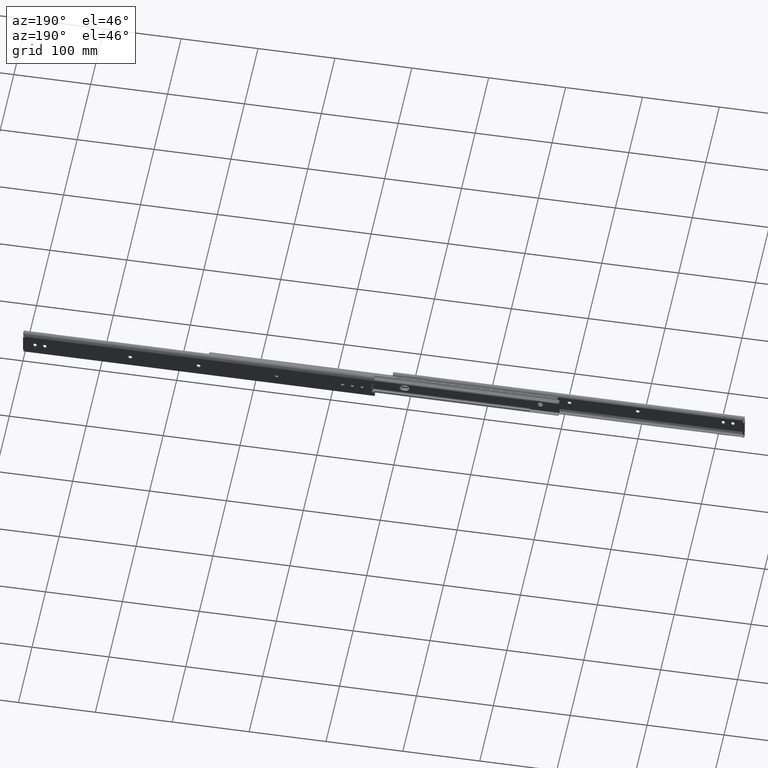
[diagram: clean part render]
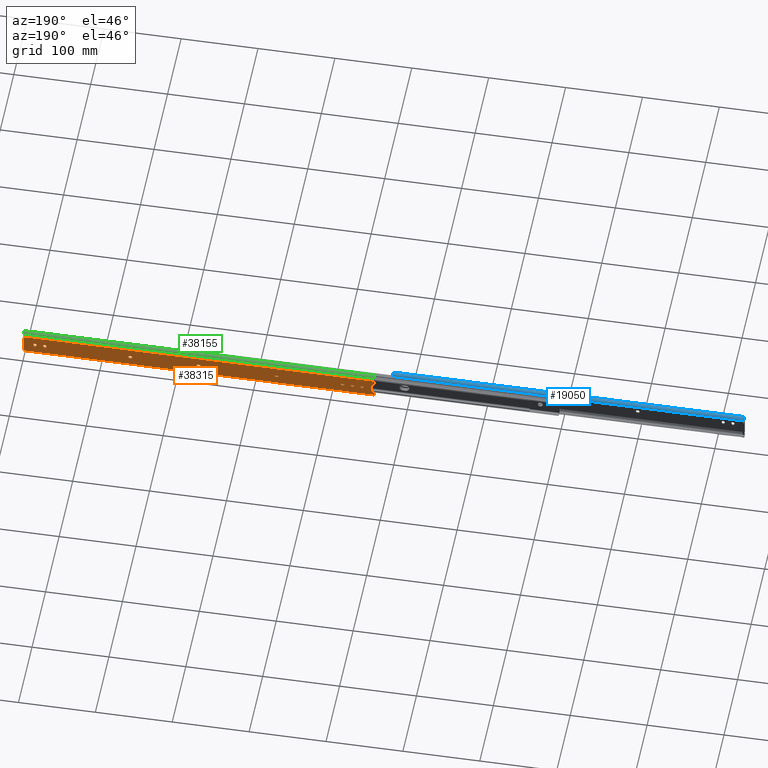
[diagram: same view with three faces highlighted in distinct colors, each labeled with its STEP entity id]
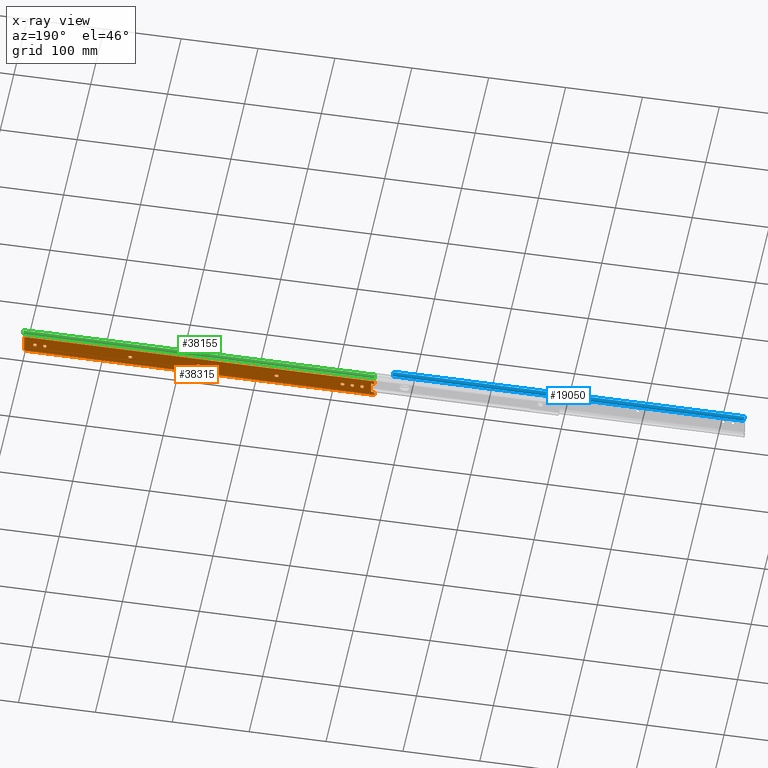
[diagram: x-ray of the same camera — body ghosted, the three highlighted faces saturated]
A machine part, auxiliary view with three faces highlighted in distinct colors.
The next image is the same camera in x-ray (body ghosted, the three faces saturated) — at least one of them is partly hidden behind the body in this view.
Their STEP definitions:

[orange] entity #38315 — the highlighted face is a freeform B-spline surface patch.
#34863=CARTESIAN_POINT('',(-443.350000000000020,0.0,0.400000000000006));
#34864=VERTEX_POINT('',#34863);
#34870=CARTESIAN_POINT('',(-438.850000000000020,0.0,0.400000000000006));
#34871=VERTEX_POINT('',#34870);
#34872=CARTESIAN_POINT('',(-438.850000000000020,0.0,0.400000000000006));
#34873=CARTESIAN_POINT('',(-438.850000000000080,0.0,2.650000000000006));
#34874=CARTESIAN_POINT('',(-441.100000000000020,0.0,2.650000000000005));
#34875=CARTESIAN_POINT('',(-443.349999999999970,0.0,2.650000000000006));
#34876=CARTESIAN_POINT('',(-443.350000000000020,0.0,0.400000000000006));
#34884=(BOUNDED_CURVE()B_SPLINE_CURVE(2,(#34872,#34873,#34874,#34875,#34876),.UNSPECIFIED.,.F.,.U.)B_SPLINE_CURVE_WITH_KNOTS((3,2,3),(0.0,0.500000000000000,1.0),.UNSPECIFIED.)CURVE()GEOMETRIC_REPRESENTATION_ITEM()RATIONAL_B_SPLINE_CURVE((1.0,0.707106781186547,1.0,0.707106781186547,1.0))REPRESENTATION_ITEM(''));
#34885=EDGE_CURVE('',#34871,#34864,#34884,.T.);
#34908=CARTESIAN_POINT('',(-438.850000000000020,0.0,-0.400000000000092));
#34909=VERTEX_POINT('',#34908);
#34910=CARTESIAN_POINT('',(-438.850000000000020,0.0,-0.400000000000092));
#34911=CARTESIAN_POINT('',(-438.850000000000020,0.0,0.400000000000006));
#34912=QUASI_UNIFORM_CURVE('',1,(#34910,#34911),.UNSPECIFIED.,.F.,.U.);
#34913=EDGE_CURVE('',#34909,#34871,#34912,.T.);
#34959=CARTESIAN_POINT('',(-443.350000000000020,0.0,-0.400000000000091));
#34960=VERTEX_POINT('',#34959);
#34961=CARTESIAN_POINT('',(-443.350000000000020,0.0,-0.400000000000091));
#34962=CARTESIAN_POINT('',(-443.349999999999970,0.0,-2.650000000000091));
#34963=CARTESIAN_POINT('',(-441.100000000000020,0.0,-2.650000000000091));
#34964=CARTESIAN_POINT('',(-438.850000000000080,0.0,-2.650000000000091));
#34965=CARTESIAN_POINT('',(-438.850000000000020,0.0,-0.400000000000091));
#34973=(BOUNDED_CURVE()B_SPLINE_CURVE(2,(#34961,#34962,#34963,#34964,#34965),.UNSPECIFIED.,.F.,.U.)B_SPLINE_CURVE_WITH_KNOTS((3,2,3),(0.0,0.500000000000000,1.0),.UNSPECIFIED.)CURVE()GEOMETRIC_REPRESENTATION_ITEM()RATIONAL_B_SPLINE_CURVE((1.0,0.707106781186547,1.0,0.707106781186547,1.0))REPRESENTATION_ITEM(''));
#34974=EDGE_CURVE('',#34960,#34909,#34973,.T.);
#34995=CARTESIAN_POINT('',(-443.350000000000020,0.0,0.400000000000006));
#34996=CARTESIAN_POINT('',(-443.350000000000020,0.0,-0.400000000000091));
#34997=QUASI_UNIFORM_CURVE('',1,(#34995,#34996),.UNSPECIFIED.,.F.,.U.);
#34998=EDGE_CURVE('',#34864,#34960,#34997,.T.);
#35018=CARTESIAN_POINT('',(-430.649999999999980,0.0,-0.400000000000092));
#35019=VERTEX_POINT('',#35018);
#35025=CARTESIAN_POINT('',(-430.649999999999980,0.0,0.400000000000006));
#35026=VERTEX_POINT('',#35025);
#35027=CARTESIAN_POINT('',(-430.649999999999980,0.0,-0.400000000000092));
#35028=CARTESIAN_POINT('',(-430.649999999999980,0.0,0.400000000000006));
#35029=QUASI_UNIFORM_CURVE('',1,(#35027,#35028),.UNSPECIFIED.,.F.,.U.);
#35030=EDGE_CURVE('',#35019,#35026,#35029,.T.);
#35076=CARTESIAN_POINT('',(-426.149999999999980,0.0,0.400000000000006));
#35077=VERTEX_POINT('',#35076);
#35078=CARTESIAN_POINT('',(-426.149999999999980,0.0,0.400000000000006));
#35079=CARTESIAN_POINT('',(-426.149999999999980,0.0,2.650000000000006));
#35080=CARTESIAN_POINT('',(-428.399999999999980,0.0,2.650000000000005));
#35081=CARTESIAN_POINT('',(-430.649999999999860,0.0,2.650000000000006));
#35082=CARTESIAN_POINT('',(-430.649999999999980,0.0,0.400000000000006));
#35090=(BOUNDED_CURVE()B_SPLINE_CURVE(2,(#35078,#35079,#35080,#35081,#35082),.UNSPECIFIED.,.F.,.U.)B_SPLINE_CURVE_WITH_KNOTS((3,2,3),(0.0,0.500000000000000,1.0),.UNSPECIFIED.)CURVE()GEOMETRIC_REPRESENTATION_ITEM()RATIONAL_B_SPLINE_CURVE((1.0,0.707106781186547,1.0,0.707106781186547,1.0))REPRESENTATION_ITEM(''));
#35091=EDGE_CURVE('',#35077,#35026,#35090,.T.);
#35114=CARTESIAN_POINT('',(-426.149999999999980,0.0,-0.400000000000091));
#35115=VERTEX_POINT('',#35114);
#35116=CARTESIAN_POINT('',(-426.149999999999980,0.0,0.400000000000006));
#35117=CARTESIAN_POINT('',(-426.149999999999980,0.0,-0.400000000000091));
#35118=QUASI_UNIFORM_CURVE('',1,(#35116,#35117),.UNSPECIFIED.,.F.,.U.);
#35119=EDGE_CURVE('',#35077,#35115,#35118,.T.);
#35163=CARTESIAN_POINT('',(-430.649999999999980,0.0,-0.400000000000091));
#35164=CARTESIAN_POINT('',(-430.649999999999860,0.0,-2.650000000000091));
#35165=CARTESIAN_POINT('',(-428.399999999999980,0.0,-2.650000000000091));
#35166=CARTESIAN_POINT('',(-426.149999999999980,0.0,-2.650000000000091));
#35167=CARTESIAN_POINT('',(-426.149999999999980,0.0,-0.400000000000091));
#35175=(BOUNDED_CURVE()B_SPLINE_CURVE(2,(#35163,#35164,#35165,#35166,#35167),.UNSPECIFIED.,.F.,.U.)B_SPLINE_CURVE_WITH_KNOTS((3,2,3),(0.0,0.500000000000000,1.0),.UNSPECIFIED.)CURVE()GEOMETRIC_REPRESENTATION_ITEM()RATIONAL_B_SPLINE_CURVE((1.0,0.707106781186547,1.0,0.707106781186547,1.0))REPRESENTATION_ITEM(''));
#35176=EDGE_CURVE('',#35019,#35115,#35175,.T.);
#35219=CARTESIAN_POINT('',(-415.300000000000010,0.0,2.250000000000000));
#35220=VERTEX_POINT('',#35219);
#35226=CARTESIAN_POINT('',(-415.300000000000010,0.0,-2.250000000000000));
#35227=VERTEX_POINT('',#35226);
#35228=CARTESIAN_POINT('',(-415.300000000000010,0.0,-2.250000000000000));
#35229=CARTESIAN_POINT('',(-413.050000000000070,0.0,-2.250000000000000));
#35230=CARTESIAN_POINT('',(-413.050000000000010,0.0,0.0));
#35231=CARTESIAN_POINT('',(-413.050000000000070,0.0,2.250000000000000));
#35232=CARTESIAN_POINT('',(-415.300000000000010,0.0,2.250000000000000));
#35240=(BOUNDED_CURVE()B_SPLINE_CURVE(2,(#35228,#35229,#35230,#35231,#35232),.UNSPECIFIED.,.F.,.U.)B_SPLINE_CURVE_WITH_KNOTS((3,2,3),(0.0,0.500000000000000,1.0),.UNSPECIFIED.)CURVE()GEOMETRIC_REPRESENTATION_ITEM()RATIONAL_B_SPLINE_CURVE((1.0,0.707106781186547,1.0,0.707106781186547,1.0))REPRESENTATION_ITEM(''));
#35241=EDGE_CURVE('',#35227,#35220,#35240,.T.);
#35263=CARTESIAN_POINT('',(-416.100000000000020,0.0,2.250000000000000));
#35264=VERTEX_POINT('',#35263);
#35270=CARTESIAN_POINT('',(-416.100000000000020,0.0,2.250000000000000));
#35271=CARTESIAN_POINT('',(-415.300000000000010,0.0,2.250000000000000));
#35272=QUASI_UNIFORM_CURVE('',1,(#35270,#35271),.UNSPECIFIED.,.F.,.U.);
#35273=EDGE_CURVE('',#35264,#35220,#35272,.T.);
#35314=CARTESIAN_POINT('',(-416.100000000000020,0.0,-2.250000000000000));
#35315=VERTEX_POINT('',#35314);
#35321=CARTESIAN_POINT('',(-416.100000000000020,0.0,2.250000000000000));
#35322=CARTESIAN_POINT('',(-418.349999999999970,0.0,2.250000000000000));
#35323=CARTESIAN_POINT('',(-418.350000000000020,0.0,0.0));
#35324=CARTESIAN_POINT('',(-418.349999999999970,0.0,-2.250000000000000));
#35325=CARTESIAN_POINT('',(-416.100000000000020,0.0,-2.250000000000000));
#35333=(BOUNDED_CURVE()B_SPLINE_CURVE(2,(#35321,#35322,#35323,#35324,#35325),.UNSPECIFIED.,.F.,.U.)B_SPLINE_CURVE_WITH_KNOTS((3,2,3),(0.0,0.500000000000000,1.0),.UNSPECIFIED.)CURVE()GEOMETRIC_REPRESENTATION_ITEM()RATIONAL_B_SPLINE_CURVE((1.0,0.707106781186547,1.0,0.707106781186547,1.0))REPRESENTATION_ITEM(''));
#35334=EDGE_CURVE('',#35264,#35315,#35333,.T.);
#35351=CARTESIAN_POINT('',(-415.300000000000010,0.0,-2.250000000000000));
#35352=CARTESIAN_POINT('',(-416.100000000000020,0.0,-2.250000000000000));
#35353=QUASI_UNIFORM_CURVE('',1,(#35351,#35352),.UNSPECIFIED.,.F.,.U.);
#35354=EDGE_CURVE('',#35227,#35315,#35353,.T.);
#35397=CARTESIAN_POINT('',(-330.399999999999980,0.0,-2.250000000000000));
#35398=VERTEX_POINT('',#35397);
#35404=CARTESIAN_POINT('',(-330.399999999999980,0.0,2.250000000000000));
#35405=VERTEX_POINT('',#35404);
#35406=CARTESIAN_POINT('',(-330.399999999999980,0.0,2.250000000000000));
#35407=CARTESIAN_POINT('',(-332.649999999999980,0.0,2.250000000000000));
#35408=CARTESIAN_POINT('',(-332.649999999999980,0.0,0.0));
#35409=CARTESIAN_POINT('',(-332.649999999999980,0.0,-2.250000000000000));
#35410=CARTESIAN_POINT('',(-330.399999999999980,0.0,-2.250000000000000));
#35418=(BOUNDED_CURVE()B_SPLINE_CURVE(2,(#35406,#35407,#35408,#35409,#35410),.UNSPECIFIED.,.F.,.U.)B_SPLINE_CURVE_WITH_KNOTS((3,2,3),(0.0,0.500000000000000,1.0),.UNSPECIFIED.)CURVE()GEOMETRIC_REPRESENTATION_ITEM()RATIONAL_B_SPLINE_CURVE((1.0,0.707106781186547,1.0,0.707106781186547,1.0))REPRESENTATION_ITEM(''));
#35419=EDGE_CURVE('',#35405,#35398,#35418,.T.);
#35442=CARTESIAN_POINT('',(-329.600000000000020,0.0,2.250000000000000));
#35443=VERTEX_POINT('',#35442);
#35444=CARTESIAN_POINT('',(-329.600000000000020,0.0,2.250000000000000));
#35445=CARTESIAN_POINT('',(-330.399999999999980,0.0,2.250000000000000));
#35446=QUASI_UNIFORM_CURVE('',1,(#35444,#35445),.UNSPECIFIED.,.F.,.U.);
#35447=EDGE_CURVE('',#35443,#35405,#35446,.T.);
#35493=CARTESIAN_POINT('',(-329.600000000000020,0.0,-2.250000000000000));
#35494=VERTEX_POINT('',#35493);
#35495=CARTESIAN_POINT('',(-329.600000000000020,0.0,-2.250000000000000));
#35496=CARTESIAN_POINT('',(-327.349999999999970,0.0,-2.250000000000000));
#35497=CARTESIAN_POINT('',(-327.350000000000020,0.0,0.0));
#35498=CARTESIAN_POINT('',(-327.349999999999970,0.0,2.250000000000000));
#35499=CARTESIAN_POINT('',(-329.600000000000020,0.0,2.250000000000000));
#35507=(BOUNDED_CURVE()B_SPLINE_CURVE(2,(#35495,#35496,#35497,#35498,#35499),.UNSPECIFIED.,.F.,.U.)B_SPLINE_CURVE_WITH_KNOTS((3,2,3),(0.0,0.500000000000000,1.0),.UNSPECIFIED.)CURVE()GEOMETRIC_REPRESENTATION_ITEM()RATIONAL_B_SPLINE_CURVE((1.0,0.707106781186547,1.0,0.707106781186547,1.0))REPRESENTATION_ITEM(''));
#35508=EDGE_CURVE('',#35494,#35443,#35507,.T.);
#35529=CARTESIAN_POINT('',(-330.399999999999980,0.0,-2.250000000000000));
#35530=CARTESIAN_POINT('',(-329.600000000000020,0.0,-2.250000000000000));
#35531=QUASI_UNIFORM_CURVE('',1,(#35529,#35530),.UNSPECIFIED.,.F.,.U.);
#35532=EDGE_CURVE('',#35398,#35494,#35531,.T.);
#35552=CARTESIAN_POINT('',(-139.899999999997990,0.0,2.250000000000000));
#35553=VERTEX_POINT('',#35552);
#35559=CARTESIAN_POINT('',(-139.099999999998000,0.0,2.250000000000000));
#35560=VERTEX_POINT('',#35559);
#35561=CARTESIAN_POINT('',(-139.899999999997990,0.0,2.250000000000000));
#35562=CARTESIAN_POINT('',(-139.099999999998000,0.0,2.250000000000000));
#35563=QUASI_UNIFORM_CURVE('',1,(#35561,#35562),.UNSPECIFIED.,.F.,.U.);
#35564=EDGE_CURVE('',#35553,#35560,#35563,.T.);
#35610=CARTESIAN_POINT('',(-139.099999999998000,0.0,-2.250000000000000));
#35611=VERTEX_POINT('',#35610);
#35612=CARTESIAN_POINT('',(-139.099999999998000,0.0,-2.250000000000000));
#35613=CARTESIAN_POINT('',(-136.849999999998000,0.0,-2.250000000000000));
#35614=CARTESIAN_POINT('',(-136.849999999998000,0.0,0.0));
#35615=CARTESIAN_POINT('',(-136.849999999998000,0.0,2.250000000000000));
#35616=CARTESIAN_POINT('',(-139.099999999998000,0.0,2.250000000000000));
#35624=(BOUNDED_CURVE()B_SPLINE_CURVE(2,(#35612,#35613,#35614,#35615,#35616),.UNSPECIFIED.,.F.,.U.)B_SPLINE_CURVE_WITH_KNOTS((3,2,3),(0.0,0.500000000000000,1.0),.UNSPECIFIED.)CURVE()GEOMETRIC_REPRESENTATION_ITEM()RATIONAL_B_SPLINE_CURVE((1.0,0.707106781186547,1.0,0.707106781186547,1.0))REPRESENTATION_ITEM(''));
#35625=EDGE_CURVE('',#35611,#35560,#35624,.T.);
#35648=CARTESIAN_POINT('',(-139.899999999997990,0.0,-2.250000000000200));
#35649=VERTEX_POINT('',#35648);
#35650=CARTESIAN_POINT('',(-139.099999999998000,0.0,-2.250000000000000));
#35651=CARTESIAN_POINT('',(-139.899999999997990,0.0,-2.250000000000200));
#35652=QUASI_UNIFORM_CURVE('',1,(#35650,#35651),.UNSPECIFIED.,.F.,.U.);
#35653=EDGE_CURVE('',#35611,#35649,#35652,.T.);
#35697=CARTESIAN_POINT('',(-139.899999999997990,0.0,2.250000000000000));
#35698=CARTESIAN_POINT('',(-142.149999999997990,0.0,2.250000000000000));
#35699=CARTESIAN_POINT('',(-142.149999999997990,0.0,0.0));
#35700=CARTESIAN_POINT('',(-142.149999999997990,0.0,-2.250000000000000));
#35701=CARTESIAN_POINT('',(-139.899999999997990,0.0,-2.250000000000000));
#35709=(BOUNDED_CURVE()B_SPLINE_CURVE(2,(#35697,#35698,#35699,#35700,#35701),.UNSPECIFIED.,.F.,.U.)B_SPLINE_CURVE_WITH_KNOTS((3,2,3),(0.0,0.500000000000000,1.0),.UNSPECIFIED.)CURVE()GEOMETRIC_REPRESENTATION_ITEM()RATIONAL_B_SPLINE_CURVE((1.0,0.707106781186547,1.0,0.707106781186547,1.0))REPRESENTATION_ITEM(''));
#35710=EDGE_CURVE('',#35553,#35649,#35709,.T.);
#35753=CARTESIAN_POINT('',(-228.800000000000010,0.0,-2.250000000000000));
#35754=VERTEX_POINT('',#35753);
#35760=CARTESIAN_POINT('',(-228.800000000000010,0.0,2.250000000000000));
#35761=VERTEX_POINT('',#35760);
#35762=CARTESIAN_POINT('',(-228.800000000000010,0.0,2.250000000000000));
#35763=CARTESIAN_POINT('',(-231.050000000000040,0.0,2.250000000000000));
#35764=CARTESIAN_POINT('',(-231.050000000000010,0.0,0.0));
#35765=CARTESIAN_POINT('',(-231.050000000000040,0.0,-2.250000000000000));
#35766=CARTESIAN_POINT('',(-228.800000000000010,0.0,-2.250000000000000));
#35774=(BOUNDED_CURVE()B_SPLINE_CURVE(2,(#35762,#35763,#35764,#35765,#35766),.UNSPECIFIED.,.F.,.U.)B_SPLINE_CURVE_WITH_KNOTS((3,2,3),(0.0,0.500000000000000,1.0),.UNSPECIFIED.)CURVE()GEOMETRIC_REPRESENTATION_ITEM()RATIONAL_B_SPLINE_CURVE((1.0,0.707106781186547,1.0,0.707106781186547,1.0))REPRESENTATION_ITEM(''));
#35775=EDGE_CURVE('',#35761,#35754,#35774,.T.);
#35798=CARTESIAN_POINT('',(-228.0,0.0,2.250000000000000));
#35799=VERTEX_POINT('',#35798);
#35800=CARTESIAN_POINT('',(-228.0,0.0,2.250000000000000));
#35801=CARTESIAN_POINT('',(-228.800000000000010,0.0,2.250000000000000));
#35802=QUASI_UNIFORM_CURVE('',1,(#35800,#35801),.UNSPECIFIED.,.F.,.U.);
#35803=EDGE_CURVE('',#35799,#35761,#35802,.T.);
#35849=CARTESIAN_POINT('',(-228.0,0.0,-2.250000000000000));
#35850=VERTEX_POINT('',#35849);
#35851=CARTESIAN_POINT('',(-228.0,0.0,-2.250000000000000));
#35852=CARTESIAN_POINT('',(-225.750000000000030,0.0,-2.250000000000000));
#35853=CARTESIAN_POINT('',(-225.750000000000000,0.0,0.0));
#35854=CARTESIAN_POINT('',(-225.750000000000030,0.0,2.250000000000000));
#35855=CARTESIAN_POINT('',(-228.0,0.0,2.250000000000000));
#35863=(BOUNDED_CURVE()B_SPLINE_CURVE(2,(#35851,#35852,#35853,#35854,#35855),.UNSPECIFIED.,.F.,.U.)B_SPLINE_CURVE_WITH_KNOTS((3,2,3),(0.0,0.500000000000000,1.0),.UNSPECIFIED.)CURVE()GEOMETRIC_REPRESENTATION_ITEM()RATIONAL_B_SPLINE_CURVE((1.0,0.707106781186547,1.0,0.707106781186547,1.0))REPRESENTATION_ITEM(''));
#35864=EDGE_CURVE('',#35850,#35799,#35863,.T.);
#35885=CARTESIAN_POINT('',(-228.800000000000010,0.0,-2.250000000000000));
#35886=CARTESIAN_POINT('',(-228.0,0.0,-2.250000000000000));
#35887=QUASI_UNIFORM_CURVE('',1,(#35885,#35886),.UNSPECIFIED.,.F.,.U.);
#35888=EDGE_CURVE('',#35754,#35850,#35887,.T.);
#35931=CARTESIAN_POINT('',(-17.949999999997999,0.0,0.400000000000006));
#35932=VERTEX_POINT('',#35931);
#35938=CARTESIAN_POINT('',(-13.449999999998001,0.0,0.400000000000006));
#35939=VERTEX_POINT('',#35938);
#35940=CARTESIAN_POINT('',(-13.449999999998001,0.0,0.400000000000006));
#35941=CARTESIAN_POINT('',(-13.449999999998001,0.0,2.650000000000006));
#35942=CARTESIAN_POINT('',(-15.699999999998001,0.0,2.650000000000005));
#35943=CARTESIAN_POINT('',(-17.949999999997996,0.0,2.650000000000006));
#35944=CARTESIAN_POINT('',(-17.949999999997999,0.0,0.400000000000006));
#35952=(BOUNDED_CURVE()B_SPLINE_CURVE(2,(#35940,#35941,#35942,#35943,#35944),.UNSPECIFIED.,.F.,.U.)B_SPLINE_CURVE_WITH_KNOTS((3,2,3),(0.0,0.500000000000000,1.0),.UNSPECIFIED.)CURVE()GEOMETRIC_REPRESENTATION_ITEM()RATIONAL_B_SPLINE_CURVE((1.0,0.707106781186547,1.0,0.707106781186547,1.0))REPRESENTATION_ITEM(''));
#35953=EDGE_CURVE('',#35939,#35932,#35952,.T.);
#35975=CARTESIAN_POINT('',(-17.949999999997999,0.0,-0.400000000000091));
#35976=VERTEX_POINT('',#35975);
#35982=CARTESIAN_POINT('',(-17.949999999997999,0.0,-0.400000000000091));
#35983=CARTESIAN_POINT('',(-17.949999999997999,0.0,0.400000000000006));
#35984=QUASI_UNIFORM_CURVE('',1,(#35982,#35983),.UNSPECIFIED.,.F.,.U.);
#35985=EDGE_CURVE('',#35976,#35932,#35984,.T.);
#36026=CARTESIAN_POINT('',(-13.449999999998001,0.0,-0.400000000000091));
#36027=VERTEX_POINT('',#36026);
#36033=CARTESIAN_POINT('',(-17.949999999997999,0.0,-0.400000000000091));
#36034=CARTESIAN_POINT('',(-17.949999999997996,0.0,-2.650000000000091));
#36035=CARTESIAN_POINT('',(-15.699999999998001,0.0,-2.650000000000091));
#36036=CARTESIAN_POINT('',(-13.449999999998001,0.0,-2.650000000000091));
#36037=CARTESIAN_POINT('',(-13.449999999998001,0.0,-0.400000000000091));
#36045=(BOUNDED_CURVE()B_SPLINE_CURVE(2,(#36033,#36034,#36035,#36036,#36037),.UNSPECIFIED.,.F.,.U.)B_SPLINE_CURVE_WITH_KNOTS((3,2,3),(0.0,0.500000000000000,1.0),.UNSPECIFIED.)CURVE()GEOMETRIC_REPRESENTATION_ITEM()RATIONAL_B_SPLINE_CURVE((1.0,0.707106781186547,1.0,0.707106781186547,1.0))REPRESENTATION_ITEM(''));
#36046=EDGE_CURVE('',#35976,#36027,#36045,.T.);
#36063=CARTESIAN_POINT('',(-13.449999999998001,0.0,0.400000000000006));
#36064=CARTESIAN_POINT('',(-13.449999999998001,0.0,-0.400000000000091));
#36065=QUASI_UNIFORM_CURVE('',1,(#36063,#36064),.UNSPECIFIED.,.F.,.U.);
#36066=EDGE_CURVE('',#35939,#36027,#36065,.T.);
#36086=CARTESIAN_POINT('',(-26.149999999997998,0.0,0.400000000000007));
#36087=VERTEX_POINT('',#36086);
#36093=CARTESIAN_POINT('',(-26.149999999998052,0.0,-0.400000000000091));
#36094=VERTEX_POINT('',#36093);
#36095=CARTESIAN_POINT('',(-26.149999999997998,0.0,0.400000000000007));
#36096=CARTESIAN_POINT('',(-26.149999999998052,0.0,-0.400000000000091));
#36097=QUASI_UNIFORM_CURVE('',1,(#36095,#36096),.UNSPECIFIED.,.F.,.U.);
#36098=EDGE_CURVE('',#36087,#36094,#36097,.T.);
#36144=CARTESIAN_POINT('',(-30.649999999998052,0.0,-0.400000000000091));
#36145=VERTEX_POINT('',#36144);
#36146=CARTESIAN_POINT('',(-30.649999999998052,0.0,-0.400000000000091));
#36147=CARTESIAN_POINT('',(-30.649999999998052,0.0,-2.650000000000091));
#36148=CARTESIAN_POINT('',(-28.399999999998052,0.0,-2.650000000000091));
#36149=CARTESIAN_POINT('',(-26.149999999998055,0.0,-2.650000000000091));
#36150=CARTESIAN_POINT('',(-26.149999999998052,0.0,-0.400000000000091));
#36158=(BOUNDED_CURVE()B_SPLINE_CURVE(2,(#36146,#36147,#36148,#36149,#36150),.UNSPECIFIED.,.F.,.U.)B_SPLINE_CURVE_WITH_KNOTS((3,2,3),(0.0,0.500000000000000,1.0),.UNSPECIFIED.)CURVE()GEOMETRIC_REPRESENTATION_ITEM()RATIONAL_B_SPLINE_CURVE((1.0,0.707106781186547,1.0,0.707106781186547,1.0))REPRESENTATION_ITEM(''));
#36159=EDGE_CURVE('',#36145,#36094,#36158,.T.);
#36182=CARTESIAN_POINT('',(-30.649999999998052,0.0,0.400000000000006));
#36183=VERTEX_POINT('',#36182);
#36184=CARTESIAN_POINT('',(-30.649999999998052,0.0,-0.400000000000091));
#36185=CARTESIAN_POINT('',(-30.649999999998052,0.0,0.400000000000006));
#36186=QUASI_UNIFORM_CURVE('',1,(#36184,#36185),.UNSPECIFIED.,.F.,.U.);
#36187=EDGE_CURVE('',#36145,#36183,#36186,.T.);
#36231=CARTESIAN_POINT('',(-26.149999999998052,0.0,0.400000000000006));
#36232=CARTESIAN_POINT('',(-26.149999999998055,0.0,2.650000000000006));
#36233=CARTESIAN_POINT('',(-28.399999999998052,0.0,2.650000000000005));
#36234=CARTESIAN_POINT('',(-30.649999999998052,0.0,2.650000000000006));
#36235=CARTESIAN_POINT('',(-30.649999999998052,0.0,0.400000000000006));
#36243=(BOUNDED_CURVE()B_SPLINE_CURVE(2,(#36231,#36232,#36233,#36234,#36235),.UNSPECIFIED.,.F.,.U.)B_SPLINE_CURVE_WITH_KNOTS((3,2,3),(0.0,0.500000000000000,1.0),.UNSPECIFIED.)CURVE()GEOMETRIC_REPRESENTATION_ITEM()RATIONAL_B_SPLINE_CURVE((1.0,0.707106781186547,1.0,0.707106781186547,1.0))REPRESENTATION_ITEM(''));
#36244=EDGE_CURVE('',#36087,#36183,#36243,.T.);
#36636=CARTESIAN_POINT('',(-1.599999999999000,0.0,-11.500000000000000));
#36637=VERTEX_POINT('',#36636);
#36653=CARTESIAN_POINT('',(-1.599999999999000,0.0,11.500000000000000));
#36654=VERTEX_POINT('',#36653);
#36655=CARTESIAN_POINT('',(-1.599999999999000,0.0,11.500000000000000));
#36656=CARTESIAN_POINT('',(-1.599999999999000,0.0,-11.500000000000000));
#36657=QUASI_UNIFORM_CURVE('',1,(#36655,#36656),.UNSPECIFIED.,.F.,.U.);
#36658=EDGE_CURVE('',#36654,#36637,#36657,.T.);
#36697=CARTESIAN_POINT('',(-452.899999999999980,0.0,7.500000000000000));
#36698=VERTEX_POINT('',#36697);
#36714=CARTESIAN_POINT('',(-452.899999999999980,0.0,-7.500000000000200));
#36715=VERTEX_POINT('',#36714);
#36716=CARTESIAN_POINT('',(-452.899999999999980,0.0,-7.500000000000200));
#36717=CARTESIAN_POINT('',(-452.899999999999980,0.0,7.500000000000000));
#36718=QUASI_UNIFORM_CURVE('',1,(#36716,#36717),.UNSPECIFIED.,.F.,.U.);
#36719=EDGE_CURVE('',#36715,#36698,#36718,.T.);
#37075=CARTESIAN_POINT('',(-2.360134746259195,0.0,12.578915999999900));
#37076=VERTEX_POINT('',#37075);
#37077=CARTESIAN_POINT('',(-2.360134746259197,0.0,12.578915999999900));
#37078=CARTESIAN_POINT('',(-2.501066018638396,0.0,12.184613891433322));
#37079=CARTESIAN_POINT('',(-2.259898584542080,0.0,11.842306945716659));
#37080=CARTESIAN_POINT('',(-2.018731150445764,0.0,11.499999999999998));
#37081=CARTESIAN_POINT('',(-1.599999999999000,0.0,11.500000000000000));
#37089=(BOUNDED_CURVE()B_SPLINE_CURVE(2,(#37077,#37078,#37079,#37080,#37081),.UNSPECIFIED.,.F.,.U.)B_SPLINE_CURVE_WITH_KNOTS((3,2,3),(0.0,0.500000000000000,1.0),.UNSPECIFIED.)CURVE()GEOMETRIC_REPRESENTATION_ITEM()RATIONAL_B_SPLINE_CURVE((1.0,0.887679040060811,1.0,0.887679040060811,1.0))REPRESENTATION_ITEM(''));
#37090=EDGE_CURVE('',#37076,#36654,#37089,.T.);
#37367=CARTESIAN_POINT('',(-2.360134746259165,0.0,-12.578916000000000));
#37368=VERTEX_POINT('',#37367);
#37376=CARTESIAN_POINT('',(-1.599999999999000,0.0,-11.500000000000000));
#37377=CARTESIAN_POINT('',(-2.018731150445796,0.0,-11.500000000000000));
#37378=CARTESIAN_POINT('',(-2.259898584542110,0.0,-11.842306945716700));
#37379=CARTESIAN_POINT('',(-2.501066018638424,0.0,-12.184613891433402));
#37380=CARTESIAN_POINT('',(-2.360134746259162,0.0,-12.578916000000000));
#37388=(BOUNDED_CURVE()B_SPLINE_CURVE(2,(#37376,#37377,#37378,#37379,#37380),.UNSPECIFIED.,.F.,.U.)B_SPLINE_CURVE_WITH_KNOTS((3,2,3),(0.0,0.500000000000000,1.0),.UNSPECIFIED.)CURVE()GEOMETRIC_REPRESENTATION_ITEM()RATIONAL_B_SPLINE_CURVE((1.0,0.887679040060797,1.0,0.887679040060797,1.0))REPRESENTATION_ITEM(''));
#37389=EDGE_CURVE('',#36637,#37368,#37388,.T.);
#37585=CARTESIAN_POINT('',(-457.0,0.0,-7.500000000000200));
#37586=VERTEX_POINT('',#37585);
#37587=CARTESIAN_POINT('',(-452.899999999999980,0.0,-7.500000000000200));
#37588=CARTESIAN_POINT('',(-457.0,0.0,-7.500000000000200));
#37589=QUASI_UNIFORM_CURVE('',1,(#37587,#37588),.UNSPECIFIED.,.F.,.U.);
#37590=EDGE_CURVE('',#36715,#37586,#37589,.T.);
#37624=CARTESIAN_POINT('',(-457.0,0.0,7.500000000000000));
#37625=VERTEX_POINT('',#37624);
#37631=CARTESIAN_POINT('',(-457.0,0.0,7.500000000000000));
#37632=CARTESIAN_POINT('',(-452.899999999999980,0.0,7.500000000000000));
#37633=QUASI_UNIFORM_CURVE('',1,(#37631,#37632),.UNSPECIFIED.,.F.,.U.);
#37634=EDGE_CURVE('',#37625,#36698,#37633,.T.);
#37694=CARTESIAN_POINT('',(-457.0,0.0,12.578915999999900));
#37695=VERTEX_POINT('',#37694);
#37696=CARTESIAN_POINT('',(-457.0,0.0,12.578915999999900));
#37697=CARTESIAN_POINT('',(-2.360134746259195,0.0,12.578915999999900));
#37698=QUASI_UNIFORM_CURVE('',1,(#37696,#37697),.UNSPECIFIED.,.F.,.U.);
#37699=EDGE_CURVE('',#37695,#37076,#37698,.T.);
#37748=CARTESIAN_POINT('',(-457.0,-4.529710E-014,-12.578916000000000));
#37749=VERTEX_POINT('',#37748);
#37763=CARTESIAN_POINT('',(-457.0,-4.529710E-014,-12.578916000000000));
#37764=CARTESIAN_POINT('',(-2.360134746259165,0.0,-12.578916000000000));
#37765=QUASI_UNIFORM_CURVE('',1,(#37763,#37764),.UNSPECIFIED.,.F.,.U.);
#37766=EDGE_CURVE('',#37749,#37368,#37765,.T.);
#38016=CARTESIAN_POINT('',(-457.0,-4.529710E-014,-12.578916000000000));
#38017=CARTESIAN_POINT('',(-457.0,0.0,-7.500000000000200));
#38018=QUASI_UNIFORM_CURVE('',1,(#38016,#38017),.UNSPECIFIED.,.F.,.U.);
#38019=EDGE_CURVE('',#37749,#37586,#38018,.T.);
#38070=CARTESIAN_POINT('',(-457.0,0.0,7.500000000000000));
#38071=CARTESIAN_POINT('',(-457.0,0.0,12.578915999999900));
#38072=QUASI_UNIFORM_CURVE('',1,(#38070,#38071),.UNSPECIFIED.,.F.,.U.);
#38073=EDGE_CURVE('',#37625,#37695,#38072,.T.);
#38250=CARTESIAN_POINT('',(-479.747229117346480,0.0,-13.835549333594059));
#38251=CARTESIAN_POINT('',(-479.747229117346480,0.0,13.835548433879779));
#38252=CARTESIAN_POINT('',(21.147241332127319,0.0,-13.835549333594059));
#38253=CARTESIAN_POINT('',(21.147241332127319,0.0,13.835548433879779));
#38254=B_SPLINE_SURFACE_WITH_KNOTS('',1,1,((#38250,#38252),(#38251,#38253)),.UNSPECIFIED.,.F.,.F.,.U.,(2,2),(2,2),(0.0,27.671097767473839),(0.0,500.894470449473770),.UNSPECIFIED.);
#38255=ORIENTED_EDGE('',*,*,#37590,.F.);
#38256=ORIENTED_EDGE('',*,*,#36719,.T.);
#38257=ORIENTED_EDGE('',*,*,#37634,.F.);
#38258=ORIENTED_EDGE('',*,*,#38073,.T.);
#38259=ORIENTED_EDGE('',*,*,#37699,.T.);
#38260=ORIENTED_EDGE('',*,*,#37090,.T.);
#38261=ORIENTED_EDGE('',*,*,#36658,.T.);
#38262=ORIENTED_EDGE('',*,*,#37389,.T.);
#38263=ORIENTED_EDGE('',*,*,#37766,.F.);
#38264=ORIENTED_EDGE('',*,*,#38019,.T.);
#38265=EDGE_LOOP('',(#38255,#38256,#38257,#38258,#38259,#38260,#38261,#38262,#38263,#38264));
#38266=FACE_OUTER_BOUND('',#38265,.T.);
#38267=ORIENTED_EDGE('',*,*,#35176,.T.);
#38268=ORIENTED_EDGE('',*,*,#35119,.F.);
#38269=ORIENTED_EDGE('',*,*,#35091,.T.);
#38270=ORIENTED_EDGE('',*,*,#35030,.F.);
#38271=EDGE_LOOP('',(#38267,#38268,#38269,#38270));
#38272=FACE_BOUND('',#38271,.T.);
#38273=ORIENTED_EDGE('',*,*,#36046,.T.);
#38274=ORIENTED_EDGE('',*,*,#36066,.F.);
#38275=ORIENTED_EDGE('',*,*,#35953,.T.);
#38276=ORIENTED_EDGE('',*,*,#35985,.F.);
#38277=EDGE_LOOP('',(#38273,#38274,#38275,#38276));
#38278=FACE_BOUND('',#38277,.T.);
#38279=ORIENTED_EDGE('',*,*,#36244,.T.);
#38280=ORIENTED_EDGE('',*,*,#36187,.F.);
#38281=ORIENTED_EDGE('',*,*,#36159,.T.);
#38282=ORIENTED_EDGE('',*,*,#36098,.F.);
#38283=EDGE_LOOP('',(#38279,#38280,#38281,#38282));
#38284=FACE_BOUND('',#38283,.T.);
#38285=ORIENTED_EDGE('',*,*,#34998,.T.);
#38286=ORIENTED_EDGE('',*,*,#34974,.T.);
#38287=ORIENTED_EDGE('',*,*,#34913,.T.);
#38288=ORIENTED_EDGE('',*,*,#34885,.T.);
#38289=EDGE_LOOP('',(#38285,#38286,#38287,#38288));
#38290=FACE_BOUND('',#38289,.T.);
#38291=ORIENTED_EDGE('',*,*,#35888,.T.);
#38292=ORIENTED_EDGE('',*,*,#35864,.T.);
#38293=ORIENTED_EDGE('',*,*,#35803,.T.);
#38294=ORIENTED_EDGE('',*,*,#35775,.T.);
#38295=EDGE_LOOP('',(#38291,#38292,#38293,#38294));
#38296=FACE_BOUND('',#38295,.T.);
#38297=ORIENTED_EDGE('',*,*,#35710,.T.);
#38298=ORIENTED_EDGE('',*,*,#35653,.F.);
#38299=ORIENTED_EDGE('',*,*,#35625,.T.);
#38300=ORIENTED_EDGE('',*,*,#35564,.F.);
#38301=EDGE_LOOP('',(#38297,#38298,#38299,#38300));
#38302=FACE_BOUND('',#38301,.T.);
#38303=ORIENTED_EDGE('',*,*,#35532,.T.);
#38304=ORIENTED_EDGE('',*,*,#35508,.T.);
#38305=ORIENTED_EDGE('',*,*,#35447,.T.);
#38306=ORIENTED_EDGE('',*,*,#35419,.T.);
#38307=EDGE_LOOP('',(#38303,#38304,#38305,#38306));
#38308=FACE_BOUND('',#38307,.T.);
#38309=ORIENTED_EDGE('',*,*,#35334,.T.);
#38310=ORIENTED_EDGE('',*,*,#35354,.F.);
#38311=ORIENTED_EDGE('',*,*,#35241,.T.);
#38312=ORIENTED_EDGE('',*,*,#35273,.F.);
#38313=EDGE_LOOP('',(#38309,#38310,#38311,#38312));
#38314=FACE_BOUND('',#38313,.T.);
#38315=ADVANCED_FACE('',(#38266,#38272,#38278,#38284,#38290,#38296,#38302,#38308,#38314),#38254,.T.);

[blue] entity #19050 — the highlighted face is a freeform B-spline surface patch.
#17159=CARTESIAN_POINT('',(-934.399999999999980,-10.400000006287661,15.138563460618050));
#17160=VERTEX_POINT('',#17159);
#17161=CARTESIAN_POINT('',(-936.0,-11.302638518558020,16.501614328666900));
#17162=VERTEX_POINT('',#17161);
#17163=CARTESIAN_POINT('',(-934.399999999999980,-10.400000006287661,15.138563460618050));
#17164=CARTESIAN_POINT('',(-934.507510650755190,-10.399999847391321,15.138563060623950));
#17165=CARTESIAN_POINT('',(-934.613197468237440,-10.403921637385899,15.148546636778351));
#17166=CARTESIAN_POINT('',(-934.769101779199560,-10.415794548544859,15.177753711239159));
#17167=CARTESIAN_POINT('',(-934.820628880005640,-10.420764661282741,15.189876977429931));
#17168=CARTESIAN_POINT('',(-934.922779118536940,-10.432923181561380,15.218958878442249));
#17169=CARTESIAN_POINT('',(-934.973457581063710,-10.440137825453981,15.235973879352651));
#17170=CARTESIAN_POINT('',(-935.120714077699060,-10.464931437134499,15.293049588916309));
#17171=CARTESIAN_POINT('',(-935.213730047605960,-10.485727786599799,15.339377905997379));
#17172=CARTESIAN_POINT('',(-935.345529011461510,-10.524770383154770,15.420602495762900));
#17173=CARTESIAN_POINT('',(-935.388390999426060,-10.539195625049770,15.449821723506661));
#17174=CARTESIAN_POINT('',(-935.470226039969820,-10.570629325489760,15.511326164734291));
#17175=CARTESIAN_POINT('',(-935.509084929386630,-10.587569194593749,15.543485657188530));
#17176=CARTESIAN_POINT('',(-935.619664179419490,-10.642366941532041,15.643828412097800));
#17177=CARTESIAN_POINT('',(-935.685439662761500,-10.684161317217781,15.715845951868040));
#17178=CARTESIAN_POINT('',(-935.771909505984240,-10.756635717826340,15.830767086955410));
#17179=CARTESIAN_POINT('',(-935.798342710821200,-10.782170368121610,15.869798213791491));
#17180=CARTESIAN_POINT('',(-935.846116544576150,-10.835615070034610,15.948310864425441));
#17181=CARTESIAN_POINT('',(-935.888982026440540,-10.891588250847430,16.027518410731950));
#17182=CARTESIAN_POINT('',(-935.922322139278090,-10.952901375300820,16.107761205598141));
#17183=CARTESIAN_POINT('',(-935.950932325406940,-11.017063857679030,16.188375003247138));
#17184=CARTESIAN_POINT('',(-935.962849954100420,-11.050613901078609,16.228898812355489));
#17185=CARTESIAN_POINT('',(-935.990993506666310,-11.153651158203081,16.348385031450949));
#17186=CARTESIAN_POINT('',(-936.000000000000230,-11.226162785928111,16.426097027481919));
#17187=CARTESIAN_POINT('',(-936.0,-11.302638518558020,16.501614328666900));
#17188=B_SPLINE_CURVE_WITH_KNOTS('',3,(#17163,#17164,#17165,#17166,#17167,#17168,#17169,#17170,#17171,#17172,#17173,#17174,#17175,#17176,#17177,#17178,#17179,#17180,#17181,#17182,#17183,#17184,#17185,#17186,#17187),.UNSPECIFIED.,.F.,.U.,(4,2,2,2,2,2,2,2,2,1,2,2,4),(0.0,0.125000000000131,0.187500000000197,0.250000000000263,0.375000000000275,0.437500000000228,0.500000000000181,0.625000000000090,0.687500000000079,0.750000000000068,0.812500000000057,0.875000000000046,1.0),.UNSPECIFIED.);
#17189=EDGE_CURVE('',#17160,#17162,#17188,.T.);
#17345=CARTESIAN_POINT('',(-479.0,-11.302638518558020,16.501614328666900));
#17346=VERTEX_POINT('',#17345);
#17347=CARTESIAN_POINT('',(-480.600000000000020,-10.400000006287661,15.138563460618050));
#17348=VERTEX_POINT('',#17347);
#17349=CARTESIAN_POINT('',(-479.0,-11.302638518558020,16.501614328666900));
#17350=CARTESIAN_POINT('',(-479.000000000000110,-11.226194380426630,16.426128226022669));
#17351=CARTESIAN_POINT('',(-479.009002831973870,-11.153967464567531,16.348703280249389));
#17352=CARTESIAN_POINT('',(-479.036830947829910,-11.051633310268860,16.230104820761930));
#17353=CARTESIAN_POINT('',(-479.048506875194110,-11.018525133691339,16.190162416846690));
#17354=CARTESIAN_POINT('',(-479.076973595465010,-10.954286019622421,16.109547304402291));
#17355=CARTESIAN_POINT('',(-479.093818583984730,-10.923146488273680,16.068838571263100));
#17356=CARTESIAN_POINT('',(-479.151098751051680,-10.834730393122410,15.948717816974829));
#17357=CARTESIAN_POINT('',(-479.198518514397280,-10.781641204461510,15.870322951846340));
#17358=CARTESIAN_POINT('',(-479.284002465994210,-10.709667387063730,15.756336066509100));
#17359=CARTESIAN_POINT('',(-479.315104708912090,-10.686836367464370,15.718734348046681));
#17360=CARTESIAN_POINT('',(-479.381318515543800,-10.644274581009361,15.646143142053941));
#17361=CARTESIAN_POINT('',(-479.416320724214980,-10.624571921534670,15.611224716890360));
#17362=CARTESIAN_POINT('',(-479.526890365007090,-10.569668163477470,15.510742359905461));
#17363=CARTESIAN_POINT('',(-479.608092741817420,-10.538598888794359,15.449330084750979));
#17364=CARTESIAN_POINT('',(-479.785317902997120,-10.485921565896451,15.339821627805369));
#17365=CARTESIAN_POINT('',(-479.878583691911100,-10.465089672703069,15.293401327635181));
#17366=CARTESIAN_POINT('',(-480.025201453344720,-10.440343947870449,15.236454534644500));
#17367=CARTESIAN_POINT('',(-480.075202352165720,-10.433193582987551,15.219599354771770));
#17368=CARTESIAN_POINT('',(-480.177520077977990,-10.420955957410460,15.190340599907231));
#17369=CARTESIAN_POINT('',(-480.229663563854390,-10.415901291472981,15.178014953838501));
#17370=CARTESIAN_POINT('',(-480.386485037344810,-10.403920717216650,15.148547022616670));
#17371=CARTESIAN_POINT('',(-480.492494592945770,-10.399999847391300,15.138563060623950));
#17372=CARTESIAN_POINT('',(-480.600000000000020,-10.400000006287661,15.138563460618050));
#17373=B_SPLINE_CURVE_WITH_KNOTS('',3,(#17349,#17350,#17351,#17352,#17353,#17354,#17355,#17356,#17357,#17358,#17359,#17360,#17361,#17362,#17363,#17364,#17365,#17366,#17367,#17368,#17369,#17370,#17371,#17372),.UNSPECIFIED.,.F.,.U.,(4,2,2,2,2,2,2,2,2,2,2,4),(0.0,0.125000000000022,0.187500000000032,0.250000000000042,0.375000000000063,0.437500000000075,0.500000000000087,0.625000000000065,0.750000000000043,0.812500000000032,0.875000000000021,1.0),.UNSPECIFIED.);
#17374=EDGE_CURVE('',#17346,#17348,#17373,.T.);
#18057=CARTESIAN_POINT('',(-935.997873357505110,-17.279058000001900,16.065403000000000));
#18058=VERTEX_POINT('',#18057);
#18072=CARTESIAN_POINT('',(-936.0,-17.215175400256950,16.147869559066450));
#18073=VERTEX_POINT('',#18072);
#18074=CARTESIAN_POINT('',(-936.0,-17.215175400256950,16.147869559066450));
#18075=CARTESIAN_POINT('',(-936.0,-17.236838632219730,16.120648295350598));
#18076=CARTESIAN_POINT('',(-935.999305848678430,-17.258132586330969,16.093158874587282));
#18077=CARTESIAN_POINT('',(-935.997873357505110,-17.279058000001900,16.065403000000000));
#18078=QUASI_UNIFORM_CURVE('',3,(#18074,#18075,#18076,#18077),.UNSPECIFIED.,.F.,.U.);
#18079=EDGE_CURVE('',#18073,#18058,#18078,.T.);
#18866=CARTESIAN_POINT('',(-480.600000000000020,-10.400000006287661,15.138563460618050));
#18867=CARTESIAN_POINT('',(-934.399999999999980,-10.400000006287661,15.138563460618050));
#18868=QUASI_UNIFORM_CURVE('',1,(#18866,#18867),.UNSPECIFIED.,.F.,.U.);
#18869=EDGE_CURVE('',#17348,#17160,#18868,.T.);
#18942=CARTESIAN_POINT('',(-479.0,-17.279058000001900,16.065403000000000));
#18943=VERTEX_POINT('',#18942);
#18944=CARTESIAN_POINT('',(-479.0,-17.279058000001900,16.065403000000000));
#18945=CARTESIAN_POINT('',(-479.0,-16.191553353804157,17.507930742604216));
#18946=CARTESIAN_POINT('',(-479.0,-14.389815680730420,17.639437400652930));
#18947=CARTESIAN_POINT('',(-479.0,-12.588078007656689,17.770944058701637));
#18948=CARTESIAN_POINT('',(-479.0,-11.302638518557989,16.501614328666939));
#18956=(BOUNDED_CURVE()B_SPLINE_CURVE(2,(#18944,#18945,#18946,#18947,#18948),.UNSPECIFIED.,.F.,.U.)B_SPLINE_CURVE_WITH_KNOTS((3,2,3),(0.0,0.500000000000000,1.0),.UNSPECIFIED.)CURVE()GEOMETRIC_REPRESENTATION_ITEM()RATIONAL_B_SPLINE_CURVE((1.0,0.910635857273625,1.0,0.910635857273625,1.0))REPRESENTATION_ITEM(''));
#18957=EDGE_CURVE('',#18943,#17346,#18956,.T.);
#19009=CARTESIAN_POINT('',(-467.574999999999870,-10.358528416234400,15.029537253893800));
#19010=CARTESIAN_POINT('',(-947.710625000000160,-10.358528416234400,15.029537253893800));
#19011=CARTESIAN_POINT('',(-467.574999999999990,-13.029223776483875,22.372588690245024));
#19012=CARTESIAN_POINT('',(-947.710625000000160,-13.029223776483875,22.372588690245024));
#19013=CARTESIAN_POINT('',(-467.574999999999870,-17.400081832940799,15.895813415892560));
#19014=CARTESIAN_POINT('',(-947.710625000000160,-17.400081832940799,15.895813415892560));
#19022=(BOUNDED_SURFACE()B_SPLINE_SURFACE(1,2,((#19009,#19011,#19013),(#19010,#19012,#19014)),.UNSPECIFIED.,.F.,.F.,.U.)B_SPLINE_SURFACE_WITH_KNOTS((2,2),(3,3),(0.0,480.135625000000290),(0.0,9.758852551128419),.UNSPECIFIED.)GEOMETRIC_REPRESENTATION_ITEM()RATIONAL_B_SPLINE_SURFACE(((1.0,0.453990499739547,1.0),(1.0,0.453990499739547,1.0)))REPRESENTATION_ITEM('')SURFACE());
#19023=ORIENTED_EDGE('',*,*,#18957,.T.);
#19024=ORIENTED_EDGE('',*,*,#17374,.T.);
#19025=ORIENTED_EDGE('',*,*,#18869,.T.);
#19026=ORIENTED_EDGE('',*,*,#17189,.T.);
#19027=CARTESIAN_POINT('',(-936.0,-17.215175400256982,16.147869559066478));
#19028=CARTESIAN_POINT('',(-936.0,-16.109776723029405,17.536875084911497));
#19029=CARTESIAN_POINT('',(-936.0,-14.337771449617829,17.642893467496808));
#19030=CARTESIAN_POINT('',(-936.0,-12.565766176206244,17.748911850082131));
#19031=CARTESIAN_POINT('',(-936.0,-11.302638518557989,16.501614328666939));
#19039=(BOUNDED_CURVE()B_SPLINE_CURVE(2,(#19027,#19028,#19029,#19030,#19031),.UNSPECIFIED.,.F.,.U.)B_SPLINE_CURVE_WITH_KNOTS((3,2,3),(0.0,0.500000000000000,1.0),.UNSPECIFIED.)CURVE()GEOMETRIC_REPRESENTATION_ITEM()RATIONAL_B_SPLINE_CURVE((1.0,0.913323076196406,1.0,0.913323076196406,1.0))REPRESENTATION_ITEM(''));
#19040=EDGE_CURVE('',#18073,#17162,#19039,.T.);
#19041=ORIENTED_EDGE('',*,*,#19040,.F.);
#19042=ORIENTED_EDGE('',*,*,#18079,.T.);
#19043=CARTESIAN_POINT('',(-479.0,-17.279058000001900,16.065403000000000));
#19044=CARTESIAN_POINT('',(-935.997873357505110,-17.279058000001900,16.065403000000000));
#19045=QUASI_UNIFORM_CURVE('',1,(#19043,#19044),.UNSPECIFIED.,.F.,.U.);
#19046=EDGE_CURVE('',#18943,#18058,#19045,.T.);
#19047=ORIENTED_EDGE('',*,*,#19046,.F.);
#19048=EDGE_LOOP('',(#19023,#19024,#19025,#19026,#19041,#19042,#19047));
#19049=FACE_OUTER_BOUND('',#19048,.T.);
#19050=ADVANCED_FACE('',(#19049),#19022,.T.);

[green] entity #38155 — the highlighted face is a freeform B-spline surface patch.
#36264=CARTESIAN_POINT('',(-1.600000000000045,-8.699999993714290,15.138563460618050));
#36265=VERTEX_POINT('',#36264);
#36266=CARTESIAN_POINT('',(0.0,-7.797361481443920,16.501614328666900));
#36267=VERTEX_POINT('',#36266);
#36268=CARTESIAN_POINT('',(-1.600000000000045,-8.699999993714290,15.138563460618050));
#36269=CARTESIAN_POINT('',(-1.492489349244848,-8.700000152610642,15.138563060623961));
#36270=CARTESIAN_POINT('',(-1.386802531762456,-8.696078362616055,15.148546636778351));
#36271=CARTESIAN_POINT('',(-1.230898220800239,-8.684205451457093,15.177753711239170));
#36272=CARTESIAN_POINT('',(-1.179371119994515,-8.679235338719217,15.189876977429940));
#36273=CARTESIAN_POINT('',(-1.077220881462936,-8.667076818440568,15.218958878442271));
#36274=CARTESIAN_POINT('',(-1.026542418936715,-8.659862174548033,15.235973879352530));
#36275=CARTESIAN_POINT('',(-0.879285922301156,-8.635068562867497,15.293049588916251));
#36276=CARTESIAN_POINT('',(-0.786269952394080,-8.614272213402176,15.339377905997351));
#36277=CARTESIAN_POINT('',(-0.654470988538447,-8.575229616847169,15.420602495762960));
#36278=CARTESIAN_POINT('',(-0.611609000574173,-8.560804374952332,15.449821723506370));
#36279=CARTESIAN_POINT('',(-0.529773960030515,-8.529370674512308,15.511326164734079));
#36280=CARTESIAN_POINT('',(-0.490915070613645,-8.512430805408295,15.543485657188389));
#36281=CARTESIAN_POINT('',(-0.380335820580866,-8.457633058469920,15.643828412097809));
#36282=CARTESIAN_POINT('',(-0.314560337238553,-8.415838682784120,15.715845951868150));
#36283=CARTESIAN_POINT('',(-0.228090494015624,-8.343364282175410,15.830767086955730));
#36284=CARTESIAN_POINT('',(-0.201657289178924,-8.317829631880548,15.869798213791190));
#36285=CARTESIAN_POINT('',(-0.153883455423959,-8.264384929967450,15.948310864425309));
#36286=CARTESIAN_POINT('',(-0.111017973559378,-8.208411749154543,16.027518410731940));
#36287=CARTESIAN_POINT('',(-0.077677860722001,-8.147098624700972,16.107761205598351));
#36288=CARTESIAN_POINT('',(-0.049067674592589,-8.082936142322593,16.188375003247550));
#36289=CARTESIAN_POINT('',(-0.037150045899664,-8.049386098923629,16.228898812355158));
#36290=CARTESIAN_POINT('',(-0.009006493333668,-7.946348841798968,16.348385031450849));
#36291=CARTESIAN_POINT('',(-1.067262E-016,-7.873837214073850,16.426097027481902));
#36292=CARTESIAN_POINT('',(1.054283E-016,-7.797361481443920,16.501614328666900));
#36293=B_SPLINE_CURVE_WITH_KNOTS('',3,(#36268,#36269,#36270,#36271,#36272,#36273,#36274,#36275,#36276,#36277,#36278,#36279,#36280,#36281,#36282,#36283,#36284,#36285,#36286,#36287,#36288,#36289,#36290,#36291,#36292),.UNSPECIFIED.,.F.,.U.,(4,2,2,2,2,2,2,2,2,1,2,2,4),(0.0,0.125000000000000,0.187499999999999,0.249999999999999,0.374999999999998,0.437499999999999,0.499999999999999,0.625000000000001,0.687500000000002,0.750000000000002,0.812500000000003,0.875000000000003,1.0),.UNSPECIFIED.);
#36294=EDGE_CURVE('',#36265,#36267,#36293,.T.);
#36450=CARTESIAN_POINT('',(-457.0,-7.797361481443920,16.501614328666900));
#36451=VERTEX_POINT('',#36450);
#36452=CARTESIAN_POINT('',(-455.399999999999980,-8.699999993714290,15.138563460618050));
#36453=VERTEX_POINT('',#36452);
#36454=CARTESIAN_POINT('',(-457.0,-7.797361481443920,16.501614328666900));
#36455=CARTESIAN_POINT('',(-457.0,-7.873805619575297,16.426128226022691));
#36456=CARTESIAN_POINT('',(-456.990997168026010,-7.946032535434354,16.348703280249470));
#36457=CARTESIAN_POINT('',(-456.963169052170090,-8.048366689732880,16.230104820762190));
#36458=CARTESIAN_POINT('',(-456.951493124806010,-8.081474866310344,16.190162416847020));
#36459=CARTESIAN_POINT('',(-456.923026404535280,-8.145713980379140,16.109547304402810));
#36460=CARTESIAN_POINT('',(-456.906181416015390,-8.176853511728496,16.068838571262820));
#36461=CARTESIAN_POINT('',(-456.848901248948380,-8.265269606879544,15.948717816974829));
#36462=CARTESIAN_POINT('',(-456.801481485602780,-8.318358795540354,15.870322951846481));
#36463=CARTESIAN_POINT('',(-456.715997534006080,-8.390332612937991,15.756336066509490));
#36464=CARTESIAN_POINT('',(-456.684895291087680,-8.413163632537781,15.718734348046370));
#36465=CARTESIAN_POINT('',(-456.618681484456320,-8.455725418992703,15.646143142053770));
#36466=CARTESIAN_POINT('',(-456.583679275784900,-8.475428078467340,15.611224716890270));
#36467=CARTESIAN_POINT('',(-456.473109634993310,-8.530331836524452,15.510742359905530));
#36468=CARTESIAN_POINT('',(-456.391907258182580,-8.561401111207681,15.449330084750830));
#36469=CARTESIAN_POINT('',(-456.214682097002820,-8.614078434105522,15.339821627805319));
#36470=CARTESIAN_POINT('',(-456.121416308089010,-8.634910327298890,15.293401327635181));
#36471=CARTESIAN_POINT('',(-455.974798546655620,-8.659656052131492,15.236454534644549));
#36472=CARTESIAN_POINT('',(-455.924797647834510,-8.666806417014385,15.219599354771820));
#36473=CARTESIAN_POINT('',(-455.822479922022130,-8.679044042591471,15.190340599907310));
#36474=CARTESIAN_POINT('',(-455.770336436145500,-8.684098708528975,15.178014953838501));
#36475=CARTESIAN_POINT('',(-455.613514962655470,-8.696079282785320,15.148547022616690));
#36476=CARTESIAN_POINT('',(-455.507505407054280,-8.700000152610668,15.138563060623950));
#36477=CARTESIAN_POINT('',(-455.399999999999980,-8.699999993714290,15.138563460618050));
#36478=B_SPLINE_CURVE_WITH_KNOTS('',3,(#36454,#36455,#36456,#36457,#36458,#36459,#36460,#36461,#36462,#36463,#36464,#36465,#36466,#36467,#36468,#36469,#36470,#36471,#36472,#36473,#36474,#36475,#36476,#36477),.UNSPECIFIED.,.F.,.U.,(4,2,2,2,2,2,2,2,2,2,2,4),(0.0,0.125000000000009,0.187500000000022,0.250000000000034,0.375000000000061,0.437500000000055,0.500000000000049,0.625000000000037,0.750000000000024,0.812500000000018,0.875000000000012,1.0),.UNSPECIFIED.);
#36479=EDGE_CURVE('',#36451,#36453,#36478,.T.);
#37162=CARTESIAN_POINT('',(-0.002126642491466,-1.820942000000060,16.065403000000000));
#37163=VERTEX_POINT('',#37162);
#37177=CARTESIAN_POINT('',(-2.220446E-016,-1.884824599745020,16.147869559066450));
#37178=VERTEX_POINT('',#37177);
#37179=CARTESIAN_POINT('',(-2.168404E-016,-1.884824599745020,16.147869559066450));
#37180=CARTESIAN_POINT('',(-2.168404E-016,-1.863161367782278,16.120648295350641));
#37181=CARTESIAN_POINT('',(-0.000694151317514,-1.841867413671005,16.093158874587282));
#37182=CARTESIAN_POINT('',(-0.002126642491466,-1.820942000000060,16.065403000000000));
#37183=QUASI_UNIFORM_CURVE('',3,(#37179,#37180,#37181,#37182),.UNSPECIFIED.,.F.,.U.);
#37184=EDGE_CURVE('',#37178,#37163,#37183,.T.);
#37971=CARTESIAN_POINT('',(-455.399999999999980,-8.699999993714290,15.138563460618050));
#37972=CARTESIAN_POINT('',(-1.600000000000045,-8.699999993714290,15.138563460618050));
#37973=QUASI_UNIFORM_CURVE('',1,(#37971,#37972),.UNSPECIFIED.,.F.,.U.);
#37974=EDGE_CURVE('',#36453,#36265,#37973,.T.);
#38047=CARTESIAN_POINT('',(-457.0,-1.820942000000060,16.065403000000000));
#38048=VERTEX_POINT('',#38047);
#38049=CARTESIAN_POINT('',(-457.0,-1.820942000000060,16.065403000000000));
#38050=CARTESIAN_POINT('',(-457.000000000000060,-2.908446646197806,17.507930742604227));
#38051=CARTESIAN_POINT('',(-457.0,-4.710184319271535,17.639437400652930));
#38052=CARTESIAN_POINT('',(-457.000000000000060,-6.511921992345264,17.770944058701641));
#38053=CARTESIAN_POINT('',(-457.0,-7.797361481443965,16.501614328666950));
#38061=(BOUNDED_CURVE()B_SPLINE_CURVE(2,(#38049,#38050,#38051,#38052,#38053),.UNSPECIFIED.,.F.,.U.)B_SPLINE_CURVE_WITH_KNOTS((3,2,3),(0.0,0.500000000000000,1.0),.UNSPECIFIED.)CURVE()GEOMETRIC_REPRESENTATION_ITEM()RATIONAL_B_SPLINE_CURVE((1.0,0.910635857273625,1.0,0.910635857273625,1.0))REPRESENTATION_ITEM(''));
#38062=EDGE_CURVE('',#38048,#36451,#38061,.T.);
#38114=CARTESIAN_POINT('',(-468.425000000000130,-8.741471583767567,15.029537253893791));
#38115=CARTESIAN_POINT('',(11.710624999999990,-8.741471583767567,15.029537253893791));
#38116=CARTESIAN_POINT('',(-468.425000000000010,-6.070776223518102,22.372588690245024));
#38117=CARTESIAN_POINT('',(11.710624999999993,-6.070776223518102,22.372588690245024));
#38118=CARTESIAN_POINT('',(-468.425000000000130,-1.699918167061167,15.895813415892571));
#38119=CARTESIAN_POINT('',(11.710624999999990,-1.699918167061167,15.895813415892571));
#38127=(BOUNDED_SURFACE()B_SPLINE_SURFACE(1,2,((#38114,#38116,#38118),(#38115,#38117,#38119)),.UNSPECIFIED.,.F.,.F.,.U.)B_SPLINE_SURFACE_WITH_KNOTS((2,2),(3,3),(0.0,480.135625000000120),(0.0,9.758852551128415),.UNSPECIFIED.)GEOMETRIC_REPRESENTATION_ITEM()RATIONAL_B_SPLINE_SURFACE(((1.0,0.453990499739547,1.0),(1.0,0.453990499739547,1.0)))REPRESENTATION_ITEM('')SURFACE());
#38128=ORIENTED_EDGE('',*,*,#38062,.T.);
#38129=ORIENTED_EDGE('',*,*,#36479,.T.);
#38130=ORIENTED_EDGE('',*,*,#37974,.T.);
#38131=ORIENTED_EDGE('',*,*,#36294,.T.);
#38132=CARTESIAN_POINT('',(-2.220446E-016,-1.884824599745020,16.147869559066450));
#38133=CARTESIAN_POINT('',(0.0,-2.990223276972556,17.536875084911493));
#38134=CARTESIAN_POINT('',(0.0,-4.762228550384132,17.642893467496808));
#38135=CARTESIAN_POINT('',(0.0,-6.534233823795708,17.748911850082127));
#38136=CARTESIAN_POINT('',(0.0,-7.797361481443920,16.501614328666900));
#38144=(BOUNDED_CURVE()B_SPLINE_CURVE(2,(#38132,#38133,#38134,#38135,#38136),.UNSPECIFIED.,.F.,.U.)B_SPLINE_CURVE_WITH_KNOTS((3,2,3),(0.0,0.500000000000000,1.0),.UNSPECIFIED.)CURVE()GEOMETRIC_REPRESENTATION_ITEM()RATIONAL_B_SPLINE_CURVE((1.0,0.913323076196406,1.0,0.913323076196406,1.0))REPRESENTATION_ITEM(''));
#38145=EDGE_CURVE('',#37178,#36267,#38144,.T.);
#38146=ORIENTED_EDGE('',*,*,#38145,.F.);
#38147=ORIENTED_EDGE('',*,*,#37184,.T.);
#38148=CARTESIAN_POINT('',(-457.0,-1.820942000000060,16.065403000000000));
#38149=CARTESIAN_POINT('',(-0.002126642491466,-1.820942000000060,16.065403000000000));
#38150=QUASI_UNIFORM_CURVE('',1,(#38148,#38149),.UNSPECIFIED.,.F.,.U.);
#38151=EDGE_CURVE('',#38048,#37163,#38150,.T.);
#38152=ORIENTED_EDGE('',*,*,#38151,.F.);
#38153=EDGE_LOOP('',(#38128,#38129,#38130,#38131,#38146,#38147,#38152));
#38154=FACE_OUTER_BOUND('',#38153,.T.);
#38155=ADVANCED_FACE('',(#38154),#38127,.T.);